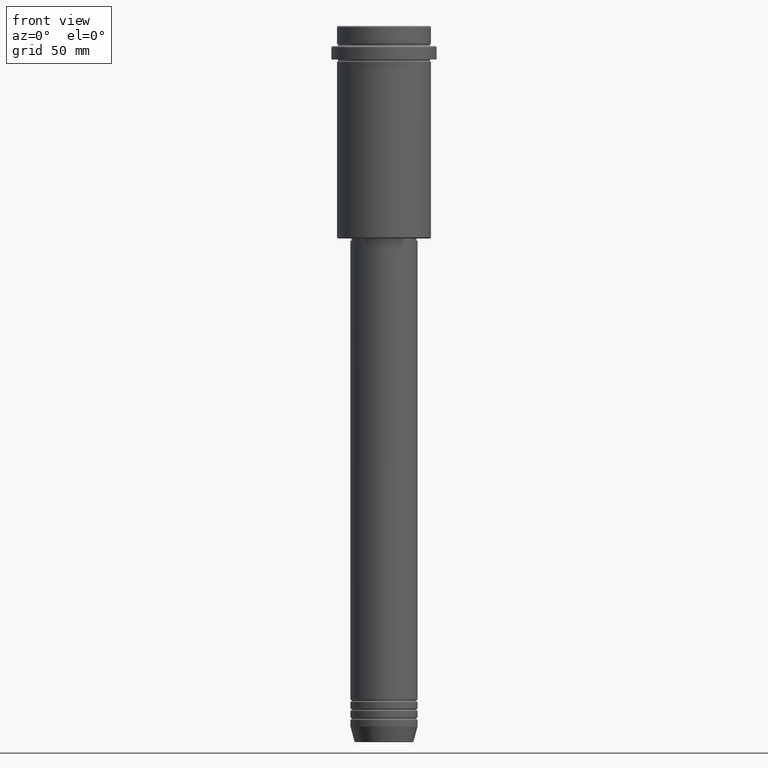
[diagram: clean part render]
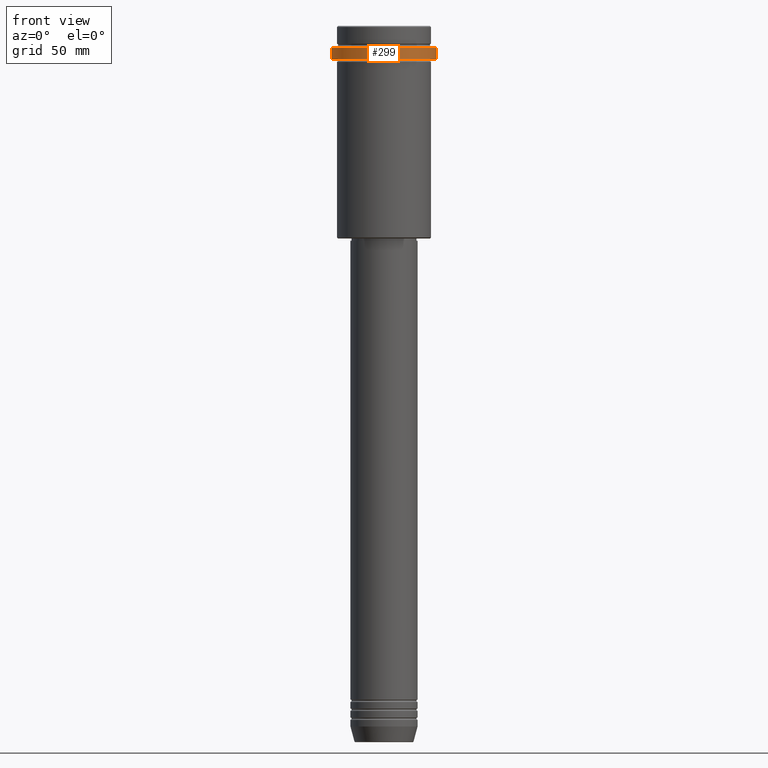
[diagram: same view with one face highlighted and labeled with its STEP entity id]
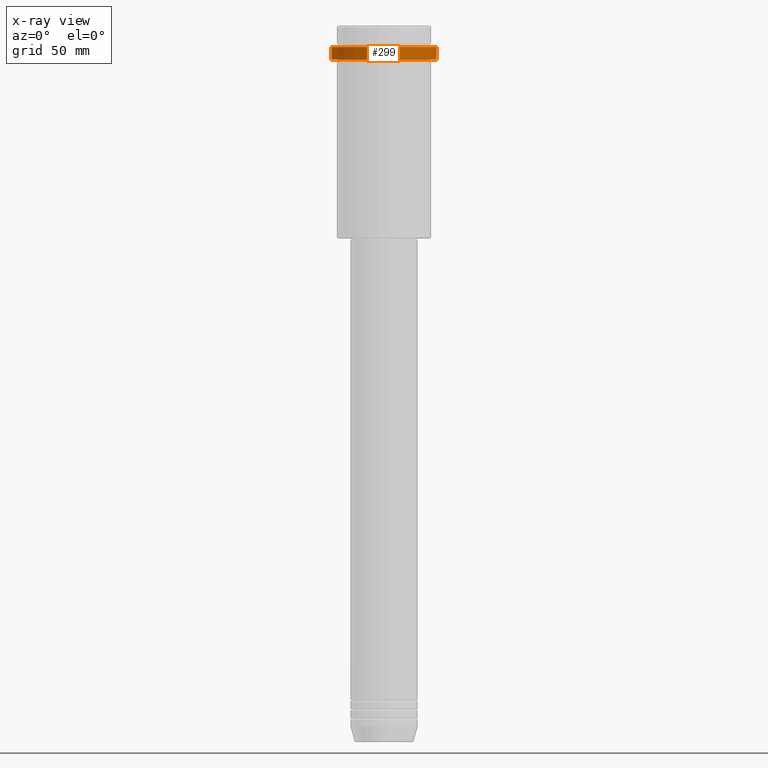
[diagram: x-ray of the same camera — body ghosted, the highlighted face saturated]
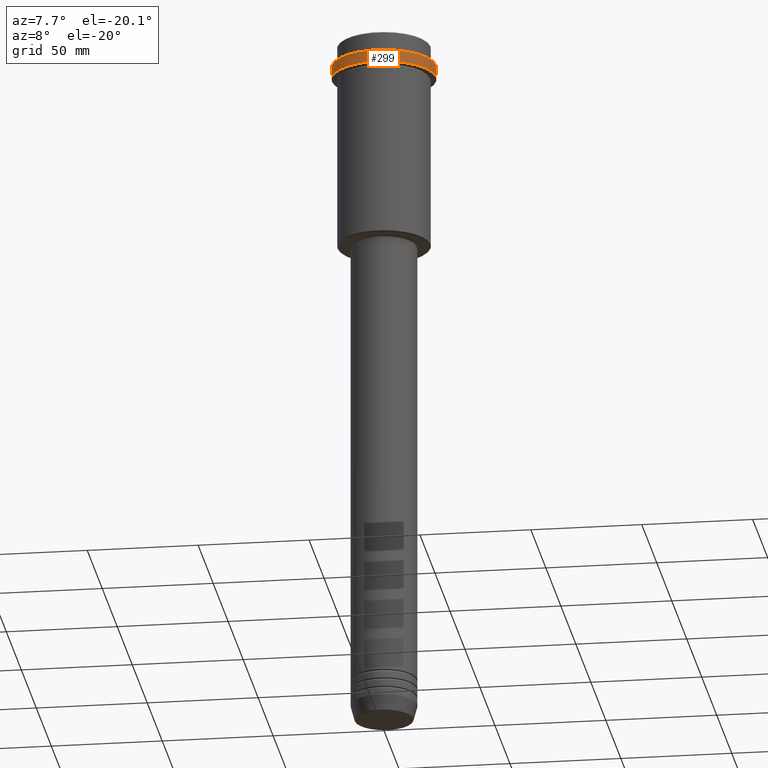
[diagram: same view with one face highlighted and labeled with its STEP entity id]
A machine part, front view. The second image highlights one B-rep face of the part: STEP entity #299.
The next image is the same camera in x-ray: the body ghosted, the highlighted face saturated — about 0% of this face is hidden behind the body in this view.
A second angle (auxiliary view) of the same face is appended — the face is thin or edge-on in the first view.
In plain terms, the highlighted cylindrical surface (partial cylindrical patch) has radius 23.5 mm, axis along (-0, -0, 1).
Its self-contained STEP definition (entity closure, byte-faithful):
#20 = AXIS2_PLACEMENT_3D ( 'NONE', #971, #1413, #1078 ) ;
#61 = CIRCLE ( 'NONE', #1346, 23.50000000000000355 ) ;
#121 = DIRECTION ( 'NONE',  ( -0.000000000000000000, -0.000000000000000000, 1.000000000000000000 ) ) ;
#131 = ORIENTED_EDGE ( 'NONE', *, *, #814, .F. ) ;
#142 = DIRECTION ( 'NONE',  ( -0.000000000000000000, -0.000000000000000000, 1.000000000000000000 ) ) ;
#165 = CARTESIAN_POINT ( 'NONE',  ( 23.50000000000000000, 0.000000000000000000, -9.499999999999971578 ) ) ;
#256 = EDGE_CURVE ( 'NONE', #1318, #1055, #61, .T. ) ;
#299 = ADVANCED_FACE ( 'NONE', ( #764 ), #879, .T. ) ;
#318 = EDGE_LOOP ( 'NONE', ( #131, #449, #1051, #989 ) ) ;
#323 = DIRECTION ( 'NONE',  ( 1.000000000000000000, 0.000000000000000000, 0.000000000000000000 ) ) ;
#352 = AXIS2_PLACEMENT_3D ( 'NONE', #1319, #121, #1091 ) ;
#449 = ORIENTED_EDGE ( 'NONE', *, *, #256, .T. ) ;
#591 = CIRCLE ( 'NONE', #20, 23.50000000000000000 ) ;
#600 = CARTESIAN_POINT ( 'NONE',  ( -23.50000000000000000, 2.877919977996280320E-15, 0.000000000000000000 ) ) ;
#623 = VERTEX_POINT ( 'NONE', #836 ) ;
#688 = CARTESIAN_POINT ( 'NONE',  ( -23.50000000000000711, 2.877919977996281109E-15, -15.00000000000000000 ) ) ;
#740 = CARTESIAN_POINT ( 'NONE',  ( 23.50000000000000355, 0.000000000000000000, -15.00000000000000000 ) ) ;
#749 = VECTOR ( 'NONE', #142, 1000.000000000000000 ) ;
#763 = LINE ( 'NONE', #600, #749 ) ;
#764 = FACE_OUTER_BOUND ( 'NONE', #318, .T. ) ;
#767 = LINE ( 'NONE', #877, #842 ) ;
#798 = CARTESIAN_POINT ( 'NONE',  ( 0.000000000000000000, 0.000000000000000000, -15.00000000000000000 ) ) ;
#814 = EDGE_CURVE ( 'NONE', #1318, #623, #763, .T. ) ;
#836 = CARTESIAN_POINT ( 'NONE',  ( -23.50000000000000000, 2.877919977996280320E-15, -9.499999999999971578 ) ) ;
#842 = VECTOR ( 'NONE', #1212, 1000.000000000000000 ) ;
#877 = CARTESIAN_POINT ( 'NONE',  ( 23.50000000000000000, 0.000000000000000000, 0.000000000000000000 ) ) ;
#879 = CYLINDRICAL_SURFACE ( 'NONE', #352, 23.50000000000000000 ) ;
#880 = VERTEX_POINT ( 'NONE', #165 ) ;
#971 = CARTESIAN_POINT ( 'NONE',  ( 0.000000000000000000, 0.000000000000000000, -9.499999999999971578 ) ) ;
#989 = ORIENTED_EDGE ( 'NONE', *, *, #1167, .T. ) ;
#1051 = ORIENTED_EDGE ( 'NONE', *, *, #1158, .T. ) ;
#1055 = VERTEX_POINT ( 'NONE', #740 ) ;
#1078 = DIRECTION ( 'NONE',  ( 1.000000000000000000, 0.000000000000000000, 0.000000000000000000 ) ) ;
#1091 = DIRECTION ( 'NONE',  ( 1.000000000000000000, 0.000000000000000000, 0.000000000000000000 ) ) ;
#1158 = EDGE_CURVE ( 'NONE', #1055, #880, #767, .T. ) ;
#1167 = EDGE_CURVE ( 'NONE', #880, #623, #591, .T. ) ;
#1212 = DIRECTION ( 'NONE',  ( -0.000000000000000000, -0.000000000000000000, 1.000000000000000000 ) ) ;
#1226 = DIRECTION ( 'NONE',  ( -0.000000000000000000, -0.000000000000000000, 1.000000000000000000 ) ) ;
#1318 = VERTEX_POINT ( 'NONE', #688 ) ;
#1319 = CARTESIAN_POINT ( 'NONE',  ( 0.000000000000000000, 0.000000000000000000, 0.000000000000000000 ) ) ;
#1346 = AXIS2_PLACEMENT_3D ( 'NONE', #798, #1226, #323 ) ;
#1413 = DIRECTION ( 'NONE',  ( 0.000000000000000000, 0.000000000000000000, -1.000000000000000000 ) ) ;